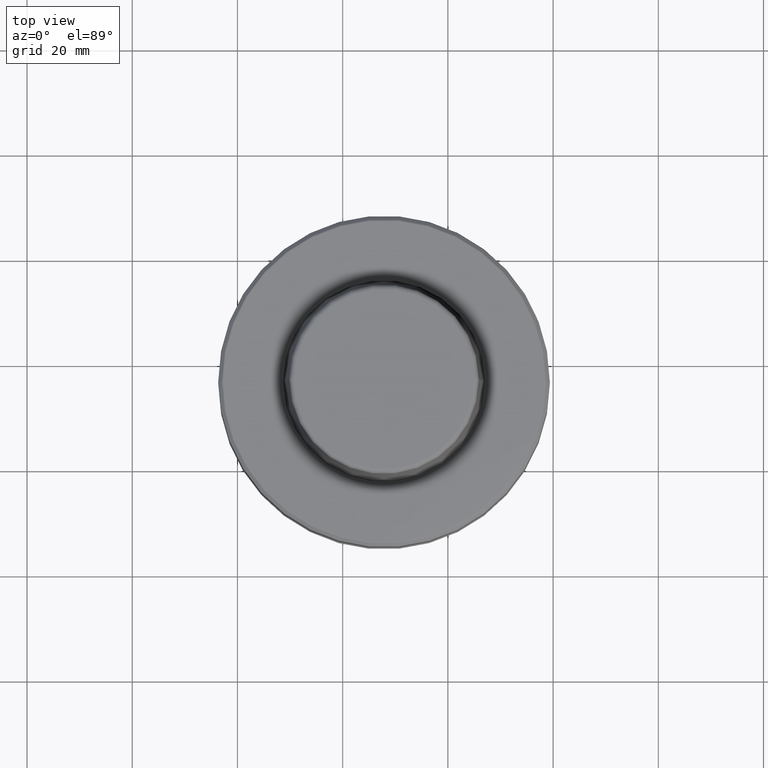
[diagram: clean part render]
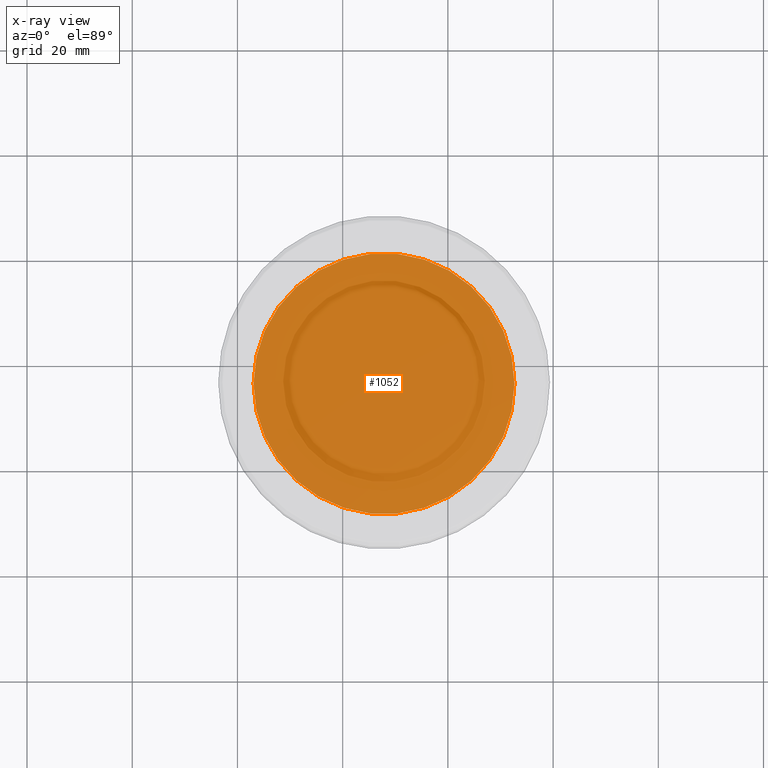
[diagram: x-ray — body ghosted, one internal face saturated and labeled with its STEP entity id]
A machine part, top view, then the same camera in x-ray: the body is ghosted and one INTERNAL B-rep face — a face not visible from any outside direction — is saturated and labeled: STEP entity #1052.
In plain terms, the highlighted planar face has unit normal (0, 0, -1).
Its self-contained STEP definition (entity closure, byte-faithful):
#7 = VERTEX_POINT ( 'NONE', #2839 ) ;
#191 = VERTEX_POINT ( 'NONE', #392 ) ;
#272 = CARTESIAN_POINT ( 'NONE',  ( -12.14432970522239000, -4.286756626697752800, 37.32075645340545100 ) ) ;
#392 = CARTESIAN_POINT ( 'NONE',  ( 12.65567029477760900, -4.286756626697751900, 37.32075645340545100 ) ) ;
#405 = FACE_OUTER_BOUND ( 'NONE', #1701, .T. ) ;
#475 = DIRECTION ( 'NONE',  ( 0.0000000000000000000, 0.0000000000000000000, -1.000000000000000000 ) ) ;
#488 = DIRECTION ( 'NONE',  ( 0.0000000000000000000, 0.0000000000000000000, -1.000000000000000000 ) ) ;
#608 = ORIENTED_EDGE ( 'NONE', *, *, #915, .F. ) ;
#648 = CARTESIAN_POINT ( 'NONE',  ( -12.14432970522239000, -4.286756626697751900, 37.32075645340545100 ) ) ;
#890 = DIRECTION ( 'NONE',  ( 1.000000000000000000, 0.0000000000000000000, 0.0000000000000000000 ) ) ;
#915 = EDGE_CURVE ( 'NONE', #191, #7, #1837, .T. ) ;
#946 = ORIENTED_EDGE ( 'NONE', *, *, #2157, .F. ) ;
#1052 = ADVANCED_FACE ( 'NONE', ( #405 ), #1151, .F. ) ;
#1151 = PLANE ( 'NONE',  #1657 ) ;
#1657 = AXIS2_PLACEMENT_3D ( 'NONE', #272, #475, #2073 ) ;
#1701 = EDGE_LOOP ( 'NONE', ( #608, #946 ) ) ;
#1837 = CIRCLE ( 'NONE', #2465, 24.80000000000000100 ) ;
#1865 = CARTESIAN_POINT ( 'NONE',  ( -12.14432970522239000, -4.286756626697751900, 37.32075645340545100 ) ) ;
#2073 = DIRECTION ( 'NONE',  ( -1.000000000000000000, 0.0000000000000000000, -0.0000000000000000000 ) ) ;
#2084 = DIRECTION ( 'NONE',  ( 1.000000000000000000, 0.0000000000000000000, 0.0000000000000000000 ) ) ;
#2157 = EDGE_CURVE ( 'NONE', #7, #191, #2409, .T. ) ;
#2230 = DIRECTION ( 'NONE',  ( 0.0000000000000000000, 0.0000000000000000000, -1.000000000000000000 ) ) ;
#2409 = CIRCLE ( 'NONE', #2750, 24.80000000000000100 ) ;
#2465 = AXIS2_PLACEMENT_3D ( 'NONE', #648, #2230, #890 ) ;
#2750 = AXIS2_PLACEMENT_3D ( 'NONE', #1865, #488, #2084 ) ;
#2839 = CARTESIAN_POINT ( 'NONE',  ( -36.94432970522239400, -4.286756626697748400, 37.32075645340545100 ) ) ;